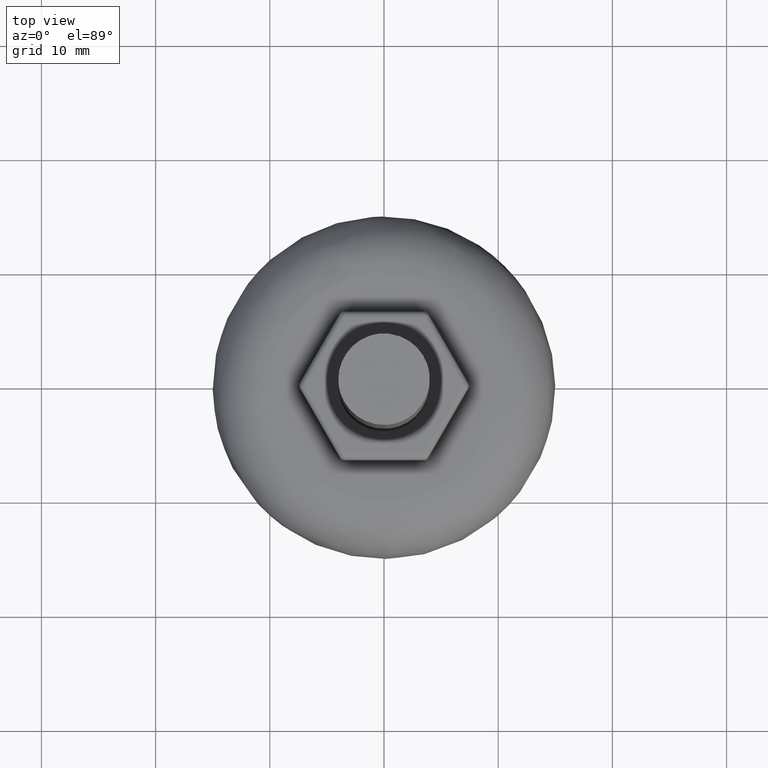
[diagram: clean part render]
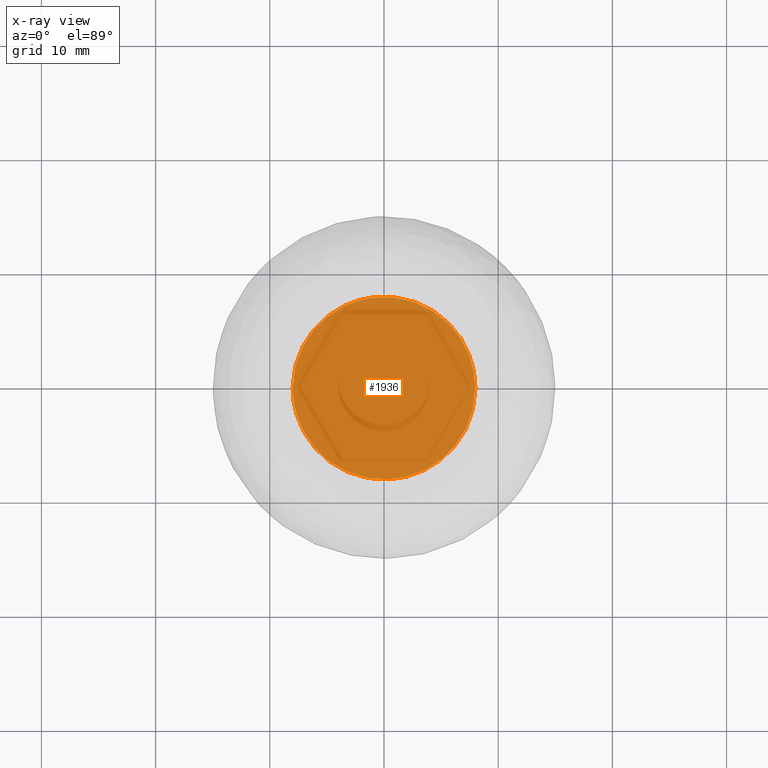
[diagram: x-ray — body ghosted, one internal face saturated and labeled with its STEP entity id]
A machine part, top view, then the same camera in x-ray: the body is ghosted and one INTERNAL B-rep face — a face not visible from any outside direction — is saturated and labeled: STEP entity #1936.
In plain terms, the highlighted face is a freeform B-spline surface patch.
Its self-contained STEP definition (entity closure, byte-faithful):
#283=CARTESIAN_POINT('',(-0.944273877296997,7.944076210909115,2.999999999993332));
#284=VERTEX_POINT('',#283);
#290=CARTESIAN_POINT('',(8.0,0.0,3.0));
#291=VERTEX_POINT('',#290);
#292=CARTESIAN_POINT('',(-0.944273877296997,7.944076210909116,2.999999999993332));
#293=CARTESIAN_POINT('',(-0.473792957258086,8.0,3.0));
#294=CARTESIAN_POINT('',(0.0,8.0,3.0));
#295=CARTESIAN_POINT('',(8.0,8.0,3.0));
#296=CARTESIAN_POINT('',(8.0,0.0,3.0));
#304=(BOUNDED_CURVE()B_SPLINE_CURVE(2,(#292,#293,#294,#295,#296),.UNSPECIFIED.,.F.,.U.)B_SPLINE_CURVE_WITH_KNOTS((3,2,3),(0.229562473513842,0.250000000000000,0.500000000000000),.UNSPECIFIED.)CURVE()GEOMETRIC_REPRESENTATION_ITEM()RATIONAL_B_SPLINE_CURVE((0.956026754184353,0.976055948331536,1.0,0.707106781186548,1.0))REPRESENTATION_ITEM(''));
#305=EDGE_CURVE('',#284,#291,#304,.T.);
#307=CARTESIAN_POINT('',(0.488388316287755,-7.985078387375430,2.999999999998575));
#308=VERTEX_POINT('',#307);
#309=CARTESIAN_POINT('',(8.0,0.0,3.0));
#310=CARTESIAN_POINT('',(8.0,-7.525648535228915,3.0));
#311=CARTESIAN_POINT('',(0.488388316287755,-7.985078387375431,2.999999999998575));
#319=(BOUNDED_CURVE()B_SPLINE_CURVE(2,(#309,#310,#311),.UNSPECIFIED.,.F.,.U.)B_SPLINE_CURVE_WITH_KNOTS((3,3),(0.500000000000000,0.739332962241587),.UNSPECIFIED.)CURVE()GEOMETRIC_REPRESENTATION_ITEM()RATIONAL_B_SPLINE_CURVE((1.0,0.719603993283612,0.976072041672385))REPRESENTATION_ITEM(''));
#320=EDGE_CURVE('',#291,#308,#319,.T.);
#354=CARTESIAN_POINT('',(-8.0,0.0,3.0));
#355=VERTEX_POINT('',#354);
#356=CARTESIAN_POINT('',(0.488388316287755,-7.985078387375430,2.999999999998575));
#357=CARTESIAN_POINT('',(0.244422106397573,-8.000000000000002,3.0));
#358=CARTESIAN_POINT('',(0.0,-8.0,3.0));
#359=CARTESIAN_POINT('',(-8.0,-8.0,3.0));
#360=CARTESIAN_POINT('',(-8.0,0.0,3.0));
#368=(BOUNDED_CURVE()B_SPLINE_CURVE(2,(#356,#357,#358,#359,#360),.UNSPECIFIED.,.F.,.U.)B_SPLINE_CURVE_WITH_KNOTS((3,2,3),(0.739332962241586,0.750000000000000,1.0),.UNSPECIFIED.)CURVE()GEOMETRIC_REPRESENTATION_ITEM()RATIONAL_B_SPLINE_CURVE((0.976072041672383,0.987502787902934,1.0,0.707106781186548,1.0))REPRESENTATION_ITEM(''));
#369=EDGE_CURVE('',#308,#355,#368,.T.);
#371=CARTESIAN_POINT('',(-8.0,0.0,3.0));
#372=CARTESIAN_POINT('',(-8.0,7.105396207534632,3.0));
#373=CARTESIAN_POINT('',(-0.944273877296997,7.944076210909115,2.999999999993332));
#381=(BOUNDED_CURVE()B_SPLINE_CURVE(2,(#371,#372,#373),.UNSPECIFIED.,.F.,.U.)B_SPLINE_CURVE_WITH_KNOTS((3,3),(0.0,0.229562473513842),.UNSPECIFIED.)CURVE()GEOMETRIC_REPRESENTATION_ITEM()RATIONAL_B_SPLINE_CURVE((1.0,0.731050832855012,0.956026754184353))REPRESENTATION_ITEM(''));
#382=EDGE_CURVE('',#355,#284,#381,.T.);
#1925=CARTESIAN_POINT('',(8.799199968988896,-8.799005706689334,3.0));
#1926=CARTESIAN_POINT('',(-8.799200398142338,-8.799005706689334,3.0));
#1927=CARTESIAN_POINT('',(8.799199968988896,8.799054487130620,3.0));
#1928=CARTESIAN_POINT('',(-8.799200398142338,8.799054487130620,3.0));
#1929=B_SPLINE_SURFACE_WITH_KNOTS('',1,1,((#1925,#1927),(#1926,#1928)),.UNSPECIFIED.,.F.,.F.,.U.,(2,2),(2,2),(0.0,17.598400367131230),(0.0,17.598060193819951),.UNSPECIFIED.);
#1930=ORIENTED_EDGE('',*,*,#320,.F.);
#1931=ORIENTED_EDGE('',*,*,#305,.F.);
#1932=ORIENTED_EDGE('',*,*,#382,.F.);
#1933=ORIENTED_EDGE('',*,*,#369,.F.);
#1934=EDGE_LOOP('',(#1930,#1931,#1932,#1933));
#1935=FACE_OUTER_BOUND('',#1934,.T.);
#1936=ADVANCED_FACE('',(#1935),#1929,.F.);